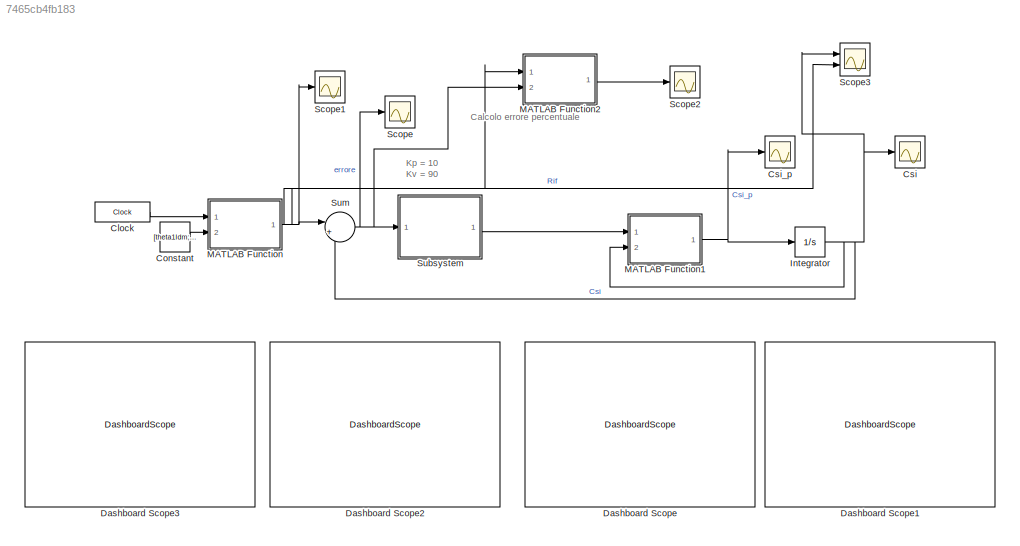
MODEL slx_7465cb4fb183
KIND model
CONFIG AbsTol = auto
CONFIG EnableMultiTasking = off
CONFIG FixedStep = auto
CONFIG MaxStep = auto
CONFIG MinStep = auto
CONFIG RelTol = 1e-3
CONFIG SampleTimeConstraint = Unconstrained
CONFIG SolverName = VariableStepAuto
CONFIG StartTime = 0.0
CONFIG StopTime = 1
BLOCK [Clock] Clock
  DisplayTime = on
BLOCK [Constant] Constant
  Value = [theta1ldm;theta2ldm;theta1ldm_p;theta2ldm_p]
  VectorParams1D = off
BLOCK [Scope] Csi
  Floating = off
  NumInputPorts = 1
  Ports = [1]
  ScopeSpecificationString = Simulink.scopes.TimeScopeBlockCfg('CurrentConfiguration', extmgr.ConfigurationSet(extmgr.Configuration('Core','General UI',true),extmgr.Configuration('Core','Source UI',true),extmgr.Configuration('Sources','WiredSimulink',true,'DataLoggingVariableName','ScopeData2'),extmgr.Configuration('Visuals','Time Domain',true,'SerializedDisplays',{struct('MinYLimReal','-2.04888','MaxYLimReal','5.37237','YLab...<+1464ch>
BLOCK [Scope] Csi_p
  Floating = off
  NumInputPorts = 1
  Ports = [1]
  ScopeSpecificationString = Simulink.scopes.TimeScopeBlockCfg('CurrentConfiguration', extmgr.ConfigurationSet(extmgr.Configuration('Core','General UI',true),extmgr.Configuration('Core','Source UI',true),extmgr.Configuration('Sources','WiredSimulink',true,'DataLoggingVariableName','ScopeData1'),extmgr.Configuration('Visuals','Time Domain',true,'SerializedDisplays',{struct('MinYLimReal','-5.30075','MaxYLimReal','5.7481','YLabe...<+1484ch>
BLOCK [DashboardScope] Dashboard Scope
BLOCK [DashboardScope] Dashboard Scope1
BLOCK [DashboardScope] Dashboard Scope2
  Ymax = 2
  Ymin = -2
BLOCK [DashboardScope] Dashboard Scope3
BLOCK [Integrator] Integrator
  InitialCondition = [theta1ldm(1,1);theta2ldm(1,1);theta1ldm_p(1,1);theta2ldm_p(1,1)]
  Ports = [1, 1]
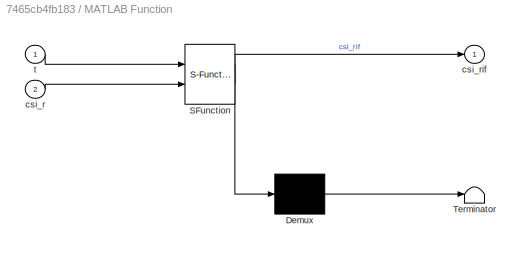
BLOCK [SubSystem] MATLAB Function
  ErrorFcn = Stateflow.Translate.translate
  PermitHierarchicalResolution = ExplicitOnly
  Ports = [2, 1]
  RequestExecContextInheritance = off
  SFBlockType = MATLAB Function
  TreatAsAtomicUnit = on
BLOCK [Demux] MATLAB Function/ Demux 
  Outputs = 1
  Ports = [1, 1]
BLOCK [S-Function] MATLAB Function/ SFunction 
  EnableBusSupport = on
  FunctionName = sf_sfun
  PortCounts = [2 2]
  Ports = [2, 2]
  SFcnIsStateOwnerBlock = off
  SFunctionDeploymentMode = off
  Tag = Stateflow S-Function 2
BLOCK [Terminator] MATLAB Function/ Terminator 
BLOCK [Inport] MATLAB Function/csi_r
  Port = 2
BLOCK [Outport] MATLAB Function/csi_rif
BLOCK [Inport] MATLAB Function/t
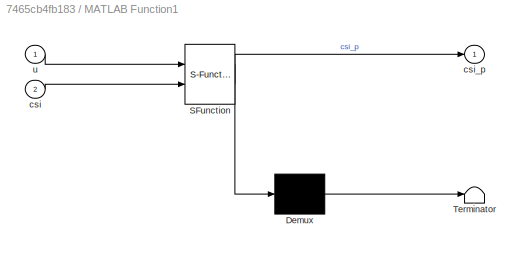
BLOCK [SubSystem] MATLAB Function1
  ErrorFcn = Stateflow.Translate.translate
  PermitHierarchicalResolution = ExplicitOnly
  Ports = [2, 1]
  RequestExecContextInheritance = off
  SFBlockType = MATLAB Function
  TreatAsAtomicUnit = on
BLOCK [Demux] MATLAB Function1/ Demux 
  Outputs = 1
  Ports = [1, 1]
BLOCK [S-Function] MATLAB Function1/ SFunction 
  EnableBusSupport = on
  FunctionName = sf_sfun
  PortCounts = [2 2]
  Ports = [2, 2]
  SFcnIsStateOwnerBlock = off
  SFunctionDeploymentMode = off
  Tag = Stateflow S-Function 1
BLOCK [Terminator] MATLAB Function1/ Terminator 
BLOCK [Inport] MATLAB Function1/csi
  Port = 2
BLOCK [Outport] MATLAB Function1/csi_p
BLOCK [Inport] MATLAB Function1/u
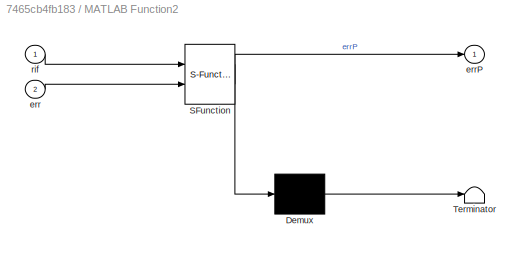
BLOCK [SubSystem] MATLAB Function2
  ErrorFcn = Stateflow.Translate.translate
  PermitHierarchicalResolution = ExplicitOnly
  Ports = [2, 1]
  RequestExecContextInheritance = off
  SFBlockType = MATLAB Function
  TreatAsAtomicUnit = on
BLOCK [Demux] MATLAB Function2/ Demux 
  Outputs = 1
  Ports = [1, 1]
BLOCK [S-Function] MATLAB Function2/ SFunction 
  EnableBusSupport = on
  FunctionName = sf_sfun
  PortCounts = [2 2]
  Ports = [2, 2]
  SFcnIsStateOwnerBlock = off
  SFunctionDeploymentMode = off
  Tag = Stateflow S-Function 3
BLOCK [Terminator] MATLAB Function2/ Terminator 
BLOCK [Inport] MATLAB Function2/err
  Port = 2
BLOCK [Outport] MATLAB Function2/errP
BLOCK [Inport] MATLAB Function2/rif
BLOCK [Scope] Scope
  Floating = off
  NumInputPorts = 1
  Ports = [1]
  ScopeSpecificationString = Simulink.scopes.TimeScopeBlockCfg('CurrentConfiguration', extmgr.ConfigurationSet(extmgr.Configuration('Core','General UI',true),extmgr.Configuration('Core','Source UI',true),extmgr.Configuration('Sources','WiredSimulink',true,'DataLoggingVariableName','ScopeData1'),extmgr.Configuration('Visuals','Time Domain',true,'SerializedDisplays',{struct('MinYLimReal','-0.5543','MaxYLimReal','0.50432','YLabe...<+1444ch>
BLOCK [Scope] Scope1
  Floating = off
  NumInputPorts = 1
  Ports = [1]
  ScopeSpecificationString = Simulink.scopes.TimeScopeBlockCfg('CurrentConfiguration', extmgr.ConfigurationSet(extmgr.Configuration('Core','General UI',true),extmgr.Configuration('Core','Source UI',true),extmgr.Configuration('Sources','WiredSimulink',true,'DataLoggingVariableName','ScopeData1'),extmgr.Configuration('Visuals','Time Domain',true,'SerializedDisplays',{struct('MinYLimReal','-0.3927','MaxYLimReal','3.53429','YLabe...<+1413ch>
BLOCK [Scope] Scope2
  Floating = off
  NumInputPorts = 1
  Ports = [1]
  ScopeSpecificationString = Simulink.scopes.TimeScopeBlockCfg('CurrentConfiguration', extmgr.ConfigurationSet(extmgr.Configuration('Core','General UI',true),extmgr.Configuration('Core','Source UI',true),extmgr.Configuration('Sources','WiredSimulink',true,'DataLoggingVariableName','ScopeData2'),extmgr.Configuration('Visuals','Time Domain',true,'SerializedDisplays',{struct('MinYLimReal','-7557.68132','MaxYLimReal','930.82006',...<+1489ch>
BLOCK [Scope] Scope3
  Floating = off
  NumInputPorts = 2
  Ports = [2]
  ScopeSpecificationString = Simulink.scopes.TimeScopeBlockCfg('CurrentConfiguration', extmgr.ConfigurationSet(extmgr.Configuration('Core','General UI',true),extmgr.Configuration('Core','Source UI',true),extmgr.Configuration('Sources','WiredSimulink',true,'DataLoggingVariableName','ScopeData3'),extmgr.Configuration('Visuals','Time Domain',true,'SerializedDisplays',{struct('MinYLimReal','-0.34855','MaxYLimReal','2.66905','YLab...<+1467ch>
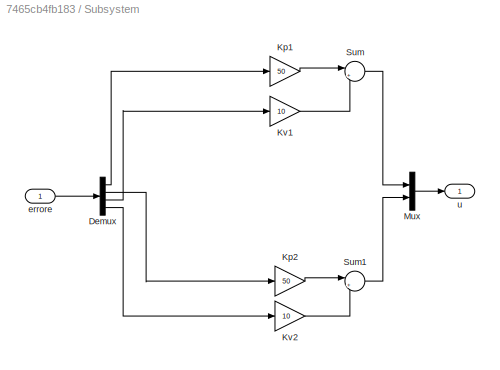
BLOCK [SubSystem] Subsystem
  Ports = [1, 1]
  RequestExecContextInheritance = off
BLOCK [Demux] Subsystem/Demux
  Ports = [1, 4]
BLOCK [Gain] Subsystem/Kp1
  Gain = 50
BLOCK [Gain] Subsystem/Kp2
  Gain = 50
BLOCK [Gain] Subsystem/Kv1
  Gain = 10
BLOCK [Gain] Subsystem/Kv2
  Gain = 10
BLOCK [Mux] Subsystem/Mux
  DisplayOption = bar
  Inputs = 2
  Ports = [2, 1]
BLOCK [Sum] Subsystem/Sum
  Inputs = |++
  Ports = [2, 1]
BLOCK [Sum] Subsystem/Sum1
  Inputs = |++
  Ports = [2, 1]
BLOCK [Inport] Subsystem/errore
BLOCK [Outport] Subsystem/u
BLOCK [Sum] Sum
  Inputs = |+-
  Ports = [2, 1]
ANNOTATION (root): Kp = 10 Kv = 90
ANNOTATION (root): Calcolo errore percentuale
LINE Clock:1 -> MATLAB Function:1
LINE Constant:1 -> MATLAB Function:2
NET Integrator:1 -> Csi:1, MATLAB Function1:2, Scope3:1, Sum:2
NET MATLAB Function1:1 -> Csi_p:1, Integrator:1
LINE MATLAB Function2:1 -> Scope2:1
NET MATLAB Function:1 -> MATLAB Function2:1, Scope1:1, Scope3:2, Sum:1
LINE Subsystem/Demux:1 -> Subsystem/Kp1:1
LINE Subsystem/Demux:2 -> Subsystem/Kp2:1
LINE Subsystem/Demux:3 -> Subsystem/Kv1:1
LINE Subsystem/Demux:4 -> Subsystem/Kv2:1
LINE Subsystem/Kp1:1 -> Subsystem/Sum:1
LINE Subsystem/Kp2:1 -> Subsystem/Sum1:1
LINE Subsystem/Kv1:1 -> Subsystem/Sum:2
LINE Subsystem/Kv2:1 -> Subsystem/Sum1:2
LINE Subsystem/Mux:1 -> Subsystem/u:1
LINE Subsystem/Sum1:1 -> Subsystem/Mux:2
LINE Subsystem/Sum:1 -> Subsystem/Mux:1
LINE Subsystem/errore:1 -> Subsystem/Demux:1
LINE Subsystem:1 -> MATLAB Function1:1
NET Sum:1 -> MATLAB Function2:2, Scope:1, Subsystem:1
note: NET lines group one-source signal fan-out (src -> all destinations, sorted); 1:1 wires keep LINE
CHART MATLAB Function states=1 transitions=1
  STATE_LABEL 'eML_blk_kernel()'
  STATE_LABEL 'SCRIPT:\nfunction csi_rif = fcn(t,csi_r)\n\n\n% tempo T, f(T), tempo di interpolazione (t) \nT = linspace(0,1,1000);\ncsi_rif = [interp1(T,csi_r(1,:),t);interp1(T,csi_r(2,:),t);interp1(T,csi_r(3,:),t);interp1(T,csi_r(4,:),t)];\n%y_cap(2,:) = interp1(T,Tau(2,:),t);\n'
CHART MATLAB Function2 states=1 transitions=1
  STATE_LABEL 'eML_blk_kernel()'
  STATE_LABEL 'SCRIPT:\nfunction errP = fcn(rif,err)\n\nerrP = (err./rif)*100;\n'
CHART MATLAB Function1 states=1 transitions=1
  STATE_LABEL 'eML_blk_kernel()'
  STATE_LABEL 'SCRIPT:\nfunction csi_p = f(u,csi)\n\ncsi_p = F(u,csi);\n'
CHART  states=0 transitions=0
CHART  states=0 transitions=0
CHART  states=0 transitions=0
